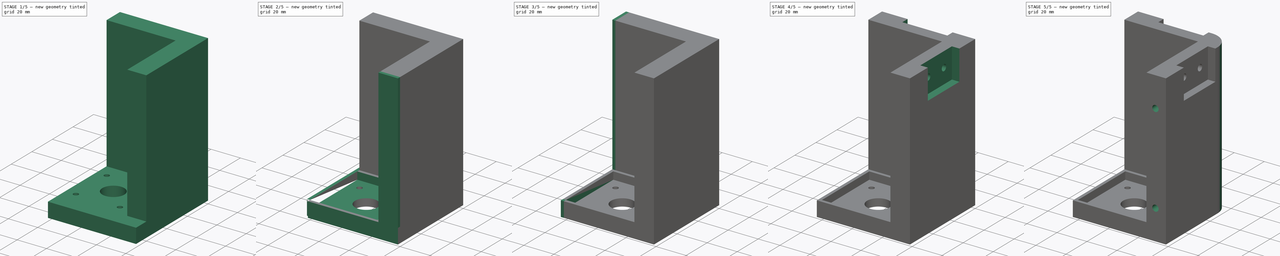
[diagram: build sequence overview — one tinted view per stage of 5, left to right]
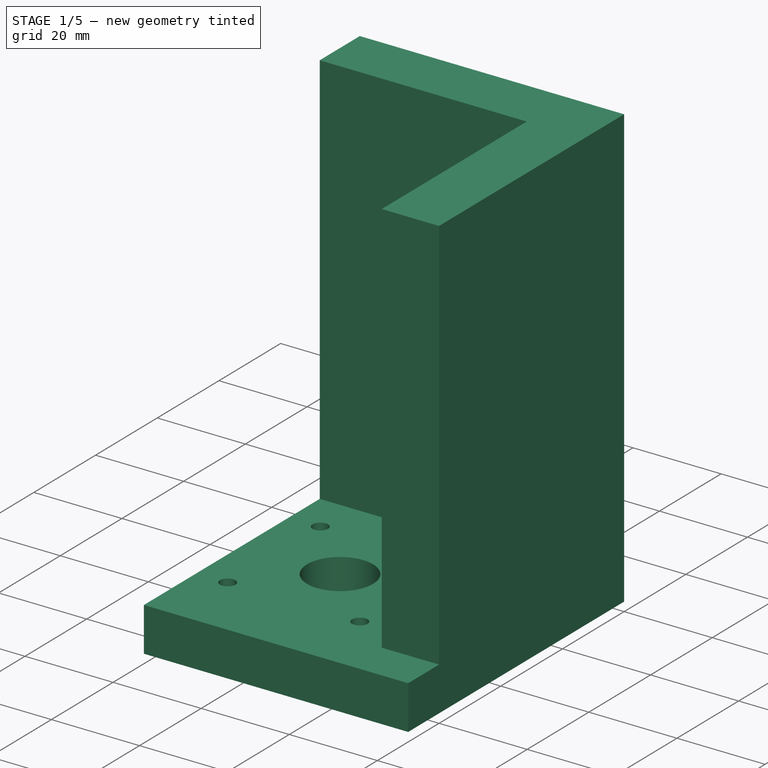
[diagram: stage 1 of 5 — iso view after this stage's code; geometry added in this stage tinted green]
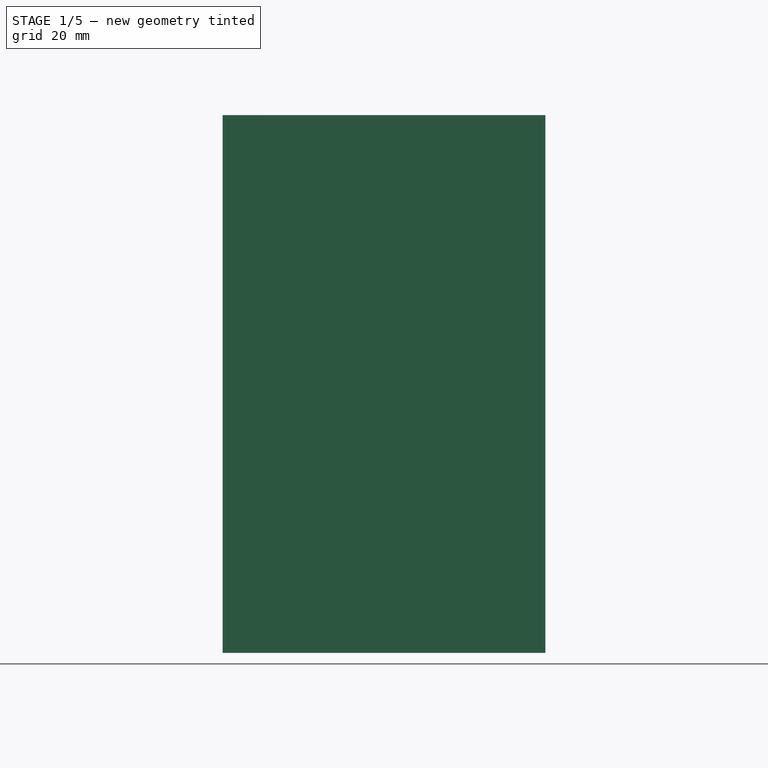
[diagram: stage 1 of 5 — front view after this stage's code; geometry added in this stage tinted green]
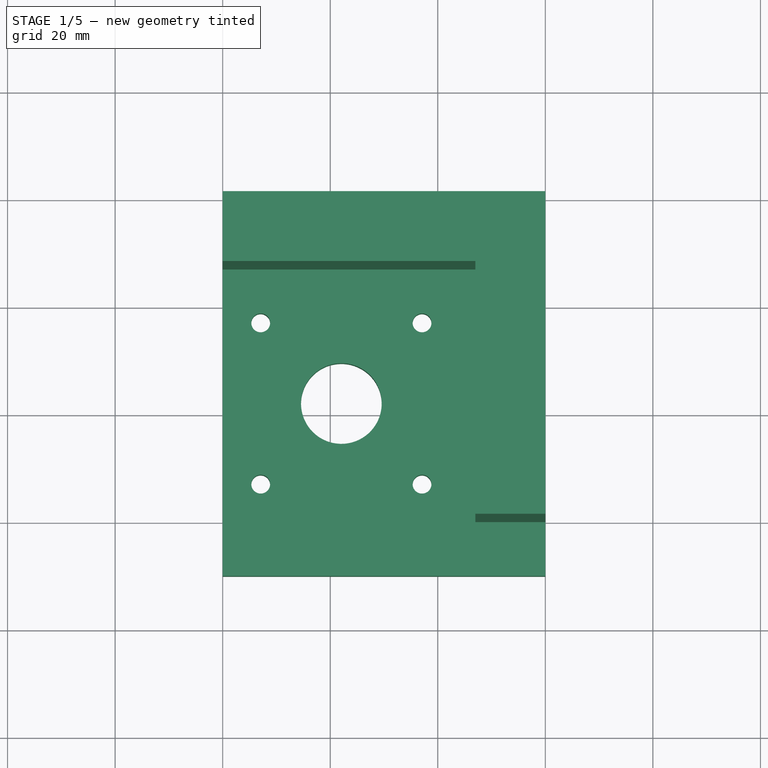
[diagram: stage 1 of 5 — top view after this stage's code; geometry added in this stage tinted green]
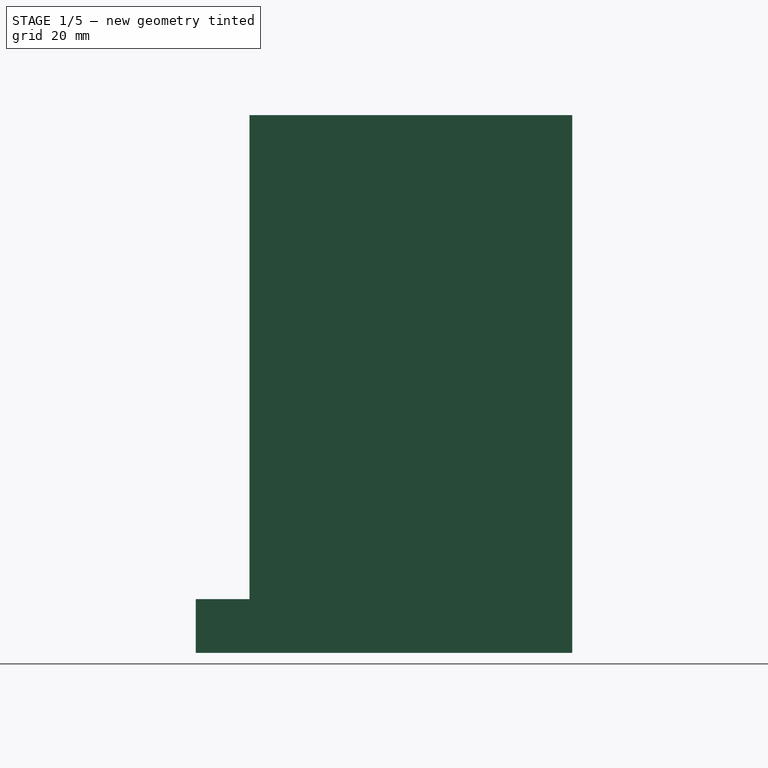
[diagram: stage 1 of 5 — right view after this stage's code; geometry added in this stage tinted green]
FCSTD DOCUMENT  (FreeCAD 0.21R33771 (Git))
Label: corner_adapterss
License: All rights reserved
LicenseURL: https://en.wikipedia.org/wiki/All_rights_reserved
objects: Sketcher::SketchObject×17, PartDesign::Pocket×12, PartDesign::Pad×9, PartDesign::Fillet×1, PartDesign::Body×1
note: 62 computed .brp shape members not serialized (recipe doc carries the construction recipe); baked Part::Feature solids carry a one-line shape summary decoded from their .brp

FEATURE [Sketcher::SketchObject] Sketch
  FullyConstrained = true
  MapMode = 5
  Support = -> [XY_Plane]
  sketch-geometry (4):
    g0: LineSegment StartX=0 StartY=0 StartZ=0 EndX=60 EndY=0 EndZ=0
    g1: LineSegment StartX=60 StartY=0 StartZ=0 EndX=60 EndY=60 EndZ=0
    g2: LineSegment StartX=60 StartY=60 StartZ=0 EndX=0 EndY=60 EndZ=0
    g3: LineSegment StartX=0 StartY=60 StartZ=0 EndX=0 EndY=0 EndZ=0
  constraints (11):
    c: Coincident(g0,g1)
    c: Coincident(g1,g2)
    c: Coincident(g2,g3)
    c: Coincident(g3,g0)
    c: Horizontal(g0)
    c: Horizontal(g2)
    c: Vertical(g1)
    c: Vertical(g3)
    c: Coincident(g0,g-1)
    c: Equal(g0,g3)
    c: DistanceX(g0,g0) = 60
FEATURE [PartDesign::Pad] Pad
  Direction = (0,0,1)
  Length = 100
  Length2 = 10
  Profile = -> Sketch
  ReferenceAxis = -> Sketch [N_Axis]
  Type = 0
FEATURE [Sketcher::SketchObject] Sketch001
  FullyConstrained = true
  MapMode = 5
  Placement = pos=(0,0,100) rot=(0,0,1;0rad)
  Support = -> [Pad]
  sketch-geometry (4):
    g0: LineSegment StartX=0 StartY=0 StartZ=0 EndX=47 EndY=0 EndZ=0
    g1: LineSegment StartX=47 StartY=0 StartZ=0 EndX=47 EndY=47 EndZ=0
    g2: LineSegment StartX=47 StartY=47 StartZ=0 EndX=0 EndY=47 EndZ=0
    g3: LineSegment StartX=0 StartY=47 StartZ=0 EndX=0 EndY=0 EndZ=0
  constraints (11):
    c: Coincident(g0,g1)
    c: Coincident(g1,g2)
    c: Coincident(g2,g3)
    c: Coincident(g3,g0)
    c: Horizontal(g0)
    c: Horizontal(g2)
    c: Vertical(g1)
    c: Vertical(g3)
    c: Coincident(g0,g-1)
    c: Equal(g0,g3)
    c: DistanceX(g0,g0) = 47
FEATURE [PartDesign::Pocket] Pocket
  BaseFeature = -> Pad
  Direction = (0,0,-1)
  Length = 90
  Length2 = 5
  Profile = -> Sketch001
  ReferenceAxis = -> Sketch001 [N_Axis]
  Type = 0
FEATURE [Sketcher::SketchObject] Sketch002
  FullyConstrained = true
  MapMode = 5
  Placement = pos=(0,0,10) rot=(0,0,1;0rad)
  Support = -> [Pocket]
  sketch-geometry (14):
    g0: LineSegment StartX=7.07107 StartY=37.0711 StartZ=0 EndX=37.0711 EndY=37.0711 EndZ=0
    g1: LineSegment StartX=37.0711 StartY=37.0711 StartZ=0 EndX=37.0711 EndY=7.07107 EndZ=0
    g2: LineSegment StartX=37.0711 StartY=7.07107 StartZ=0 EndX=7.07107 EndY=7.07107 EndZ=0
    g3: LineSegment StartX=7.07107 StartY=7.07107 StartZ=0 EndX=7.07107 EndY=37.0711 EndZ=0
    g4: LineSegment StartX=0 StartY=0 StartZ=0 EndX=37.0711 EndY=37.0711 EndZ=0
    g5: GeomPoint X=0 Y=0 Z=0
    g6: GeomPoint X=0 Y=0 Z=0
    g7: GeomPoint X=22.0711 Y=22.0711 Z=0
    g8: LineSegment StartX=7.07107 StartY=37.0711 StartZ=0 EndX=37.0711 EndY=7.07107 EndZ=0
    g9: Circle CenterX=22.0711 CenterY=22.0711 CenterZ=0 NormalX=0 NormalY=0 NormalZ=1 AngleXU=0 Radius=7.5
    g10: Circle CenterX=37.0711 CenterY=7.07107 CenterZ=0 NormalX=0 NormalY=0 NormalZ=1 AngleXU=0 Radius=1.75
    g11: Circle CenterX=7.07107 CenterY=7.07107 CenterZ=0 NormalX=0 NormalY=0 NormalZ=1 AngleXU=0 Radius=1.75
    g12: Circle CenterX=37.0711 CenterY=37.0711 CenterZ=0 NormalX=0 NormalY=0 NormalZ=1 AngleXU=0 Radius=1.75
    g13: Circle CenterX=7.07107 CenterY=37.0711 CenterZ=0 NormalX=0 NormalY=0 NormalZ=1 AngleXU=0 Radius=1.75
  constraints (30):
    c: Coincident(g0,g1)
    c: Coincident(g1,g2)
    c: Coincident(g2,g3)
    c: Coincident(g3,g0)
    c: Horizontal(g0)
    c: Horizontal(g2)
    c: Vertical(g1)
    c: Vertical(g3)
    c: Equal(g2,g3)
    c: DistanceX(g2,g2) = 30
    c: Coincident(g5,g4)
    c: Coincident(g6,g-1)
    c: Coincident(g6,g4)
    c: Coincident(g4,g0)
    c: PointOnObject(g2,g4)
    c: Distance(g2,g4) = 10
    c: PointOnObject(g7,g4)
    c: Coincident(g8,g1)
    c: Coincident(g8,g0)
    c: PointOnObject(g7,g8)
    c: Coincident(g9,g7)
    c: Diameter(g9) = 15
    c: Coincident(g13,g0)
    c: Coincident(g12,g0)
    c: Coincident(g10,g1)
    c: Coincident(g11,g2)
    c: Equal(g11,g10)
    c: Equal(g11,g12)
    c: Equal(g11,g13)
    c: Diameter(g11) = 3.5
FEATURE [PartDesign::Pocket] Pocket001
  BaseFeature = -> Pocket
  Direction = (0,0,-1)
  Length = 5
  Length2 = 5
  Profile = -> Sketch002
  ReferenceAxis = -> Sketch002 [N_Axis]
  Type = 1
FEATURE [Sketcher::SketchObject] Sketch003
  FullyConstrained = true
  MapMode = 5
  Placement = pos=(0,0,10) rot=(0,0,1;0rad)
  Support = -> [Pocket001]
FEATURE [Sketcher::SketchObject] Sketch004
  FullyConstrained = true
  MapMode = 5
  Placement = pos=(0,0,0) rot=(1,0,0;1.5708rad)
  Support = -> [Pocket001]
  sketch-geometry (4):
    g0: LineSegment StartX=0 StartY=0 StartZ=0 EndX=60 EndY=0 EndZ=0
    g1: LineSegment StartX=60 StartY=0 StartZ=0 EndX=60 EndY=10 EndZ=0
    g2: LineSegment StartX=60 StartY=10 StartZ=0 EndX=0 EndY=10 EndZ=0
    g3: LineSegment StartX=0 StartY=10 StartZ=0 EndX=0 EndY=0 EndZ=0
  constraints (11):
    c: Coincident(g0,g1)
    c: Coincident(g1,g2)
    c: Coincident(g2,g3)
    c: Coincident(g3,g0)
    c: Horizontal(g0)
    c: Horizontal(g2)
    c: Vertical(g1)
    c: Vertical(g3)
    c: Coincident(g0,g-1)
    c: DistanceY(g3,g3) = 10
    c: DistanceX(g0,g0) = 60
FEATURE [PartDesign::Pad] Pad001
  BaseFeature = -> Pocket001
  Direction = (0,-1,2e-16)
  Length = 10
  Length2 = 10
  Profile = -> Sketch004
  ReferenceAxis = -> Sketch004 [N_Axis]
  Type = 0
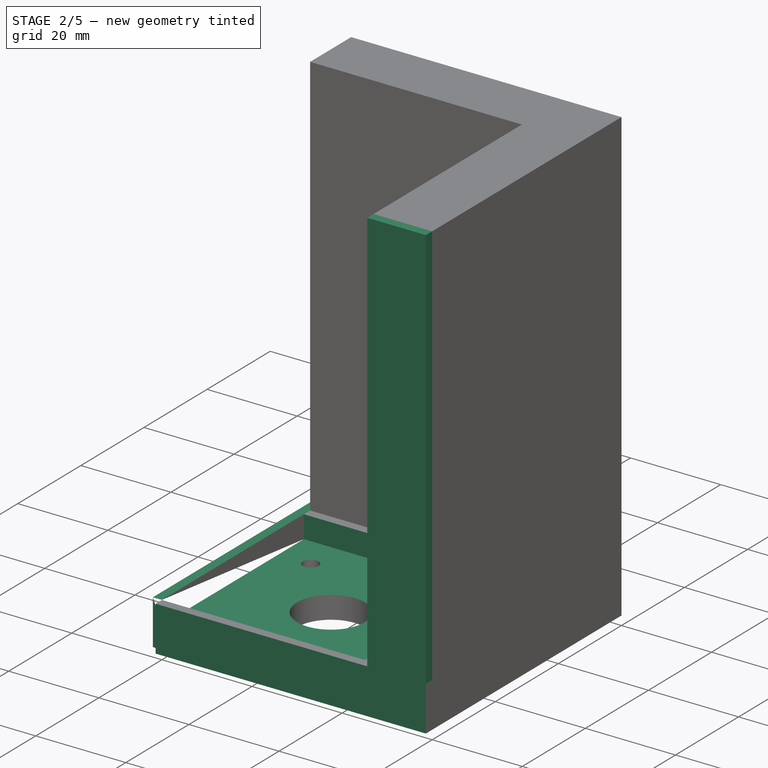
[diagram: stage 2 of 5 — iso view after this stage's code; geometry added in this stage tinted green]
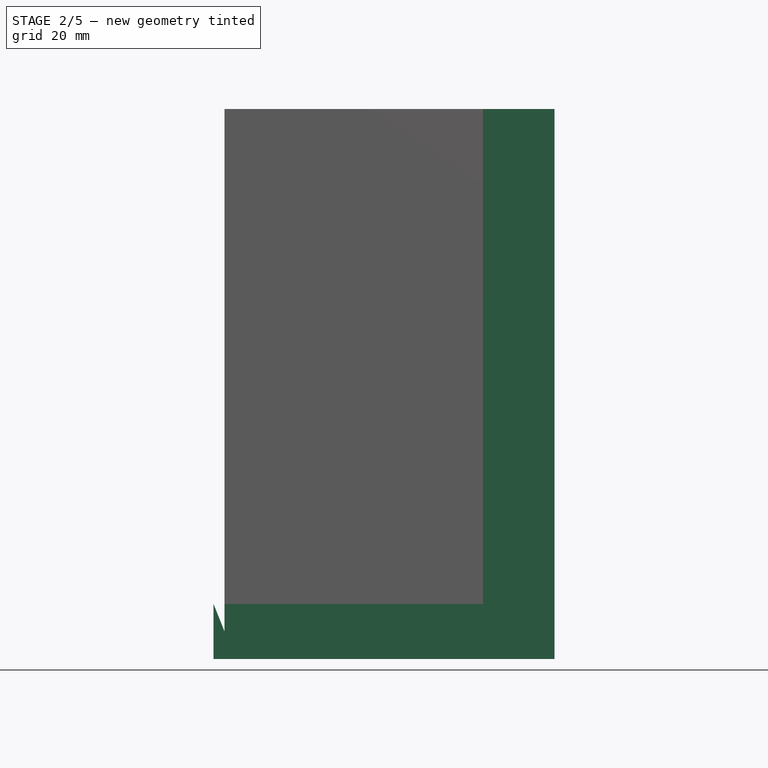
[diagram: stage 2 of 5 — front view after this stage's code; geometry added in this stage tinted green]
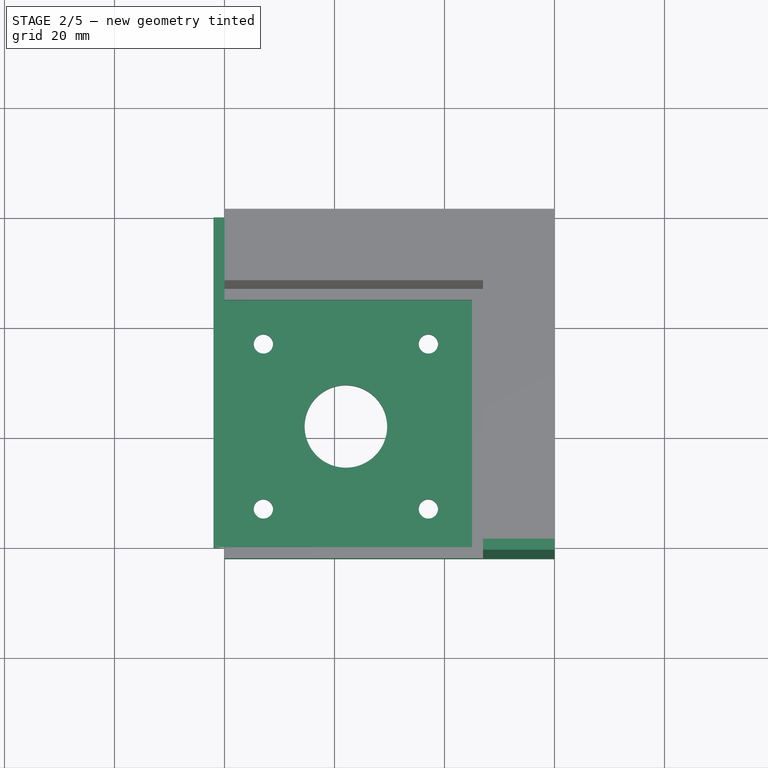
[diagram: stage 2 of 5 — top view after this stage's code; geometry added in this stage tinted green]
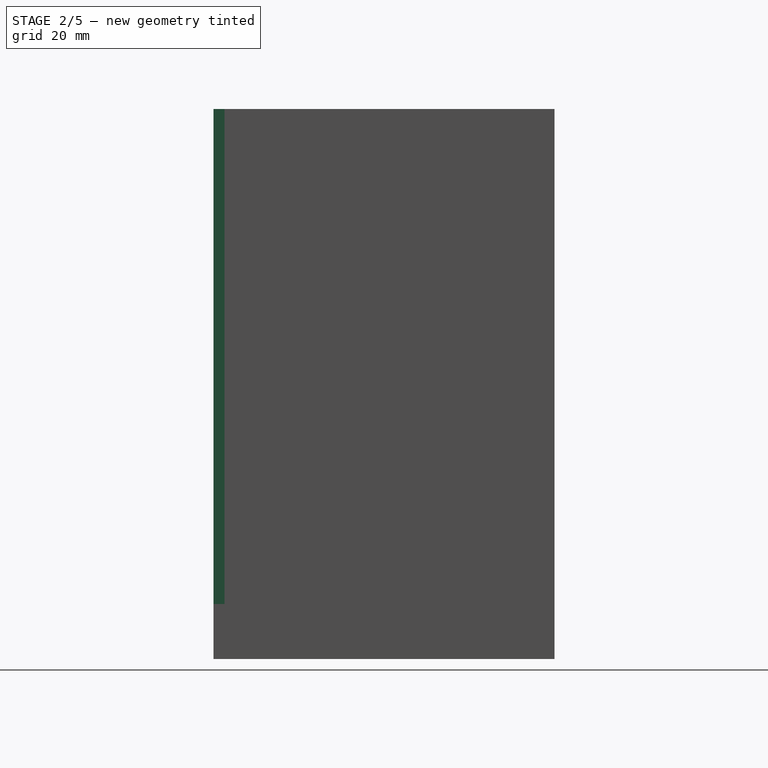
[diagram: stage 2 of 5 — right view after this stage's code; geometry added in this stage tinted green]
FEATURE [Sketcher::SketchObject] Sketch005
  FullyConstrained = true
  MapMode = 5
  Placement = pos=(0,0,0) rot=(0.57735,-0.57735,-0.57735;2.0944rad)
  Support = -> [Pad001]
  sketch-geometry (4):
    g0: LineSegment StartX=0 StartY=0 StartZ=0 EndX=-60 EndY=0 EndZ=0
    g1: LineSegment StartX=-60 StartY=0 StartZ=0 EndX=-60 EndY=10 EndZ=0
    g2: LineSegment StartX=-60 StartY=10 StartZ=0 EndX=0 EndY=10 EndZ=0
    g3: LineSegment StartX=0 StartY=10 StartZ=0 EndX=0 EndY=0 EndZ=0
  constraints (11):
    c: Coincident(g0,g1)
    c: Coincident(g1,g2)
    c: Coincident(g2,g3)
    c: Coincident(g3,g0)
    c: Horizontal(g0)
    c: Horizontal(g2)
    c: Vertical(g1)
    c: Vertical(g3)
    c: Coincident(g0,g-1)
    c: DistanceX(g0,g0) = 60
    c: DistanceY(g3,g3) = 10
FEATURE [PartDesign::Pad] Pad002
  BaseFeature = -> Pad001
  Direction = (-1,0,0)
  Length = 10
  Length2 = 10
  Profile = -> Sketch005
  ReferenceAxis = -> Sketch005 [N_Axis]
  Type = 0
FEATURE [Sketcher::SketchObject] Sketch006
  FullyConstrained = true
  MapMode = 5
  Placement = pos=(0,0,10) rot=(0,0,1;0rad)
  Support = -> [Pad002]
  sketch-geometry (4):
    g0: LineSegment StartX=0 StartY=0 StartZ=0 EndX=45 EndY=0 EndZ=0
    g1: LineSegment StartX=45 StartY=0 StartZ=0 EndX=45 EndY=45 EndZ=0
    g2: LineSegment StartX=45 StartY=45 StartZ=0 EndX=0 EndY=45 EndZ=0
    g3: LineSegment StartX=0 StartY=45 StartZ=0 EndX=0 EndY=0 EndZ=0
  constraints (11):
    c: Coincident(g0,g1)
    c: Coincident(g1,g2)
    c: Coincident(g2,g3)
    c: Coincident(g3,g0)
    c: Horizontal(g0)
    c: Horizontal(g2)
    c: Vertical(g1)
    c: Vertical(g3)
    c: Coincident(g0,g-1)
    c: Equal(g0,g3)
    c: DistanceX(g0,g0) = 45
FEATURE [PartDesign::Pocket] Pocket002
  BaseFeature = -> Pad002
  Direction = (0,0,-1)
  Length = 5
  Length2 = 5
  Profile = -> Sketch006
  ReferenceAxis = -> Sketch006 [N_Axis]
  Type = 0
FEATURE [PartDesign::Pocket] Pocket003
  BaseFeature = -> Pocket002
  Direction = (0,1,-2e-16)
  Length = 8
  Length2 = 5
  Profile = -> Pocket002 [Face14]
  Type = 0
FEATURE [PartDesign::Pocket] Pocket004
  BaseFeature = -> Pocket003
  Direction = (1,0,0)
  Length = 8
  Length2 = 5
  Profile = -> Pocket003 [Face28]
  Type = 0
FEATURE [PartDesign::Pad] Pad003
  BaseFeature = -> Pocket004
  Direction = (0,-1,0)
  Length = 2
  Length2 = 10
  Profile = -> Pocket004 [Face1]
  Type = 0
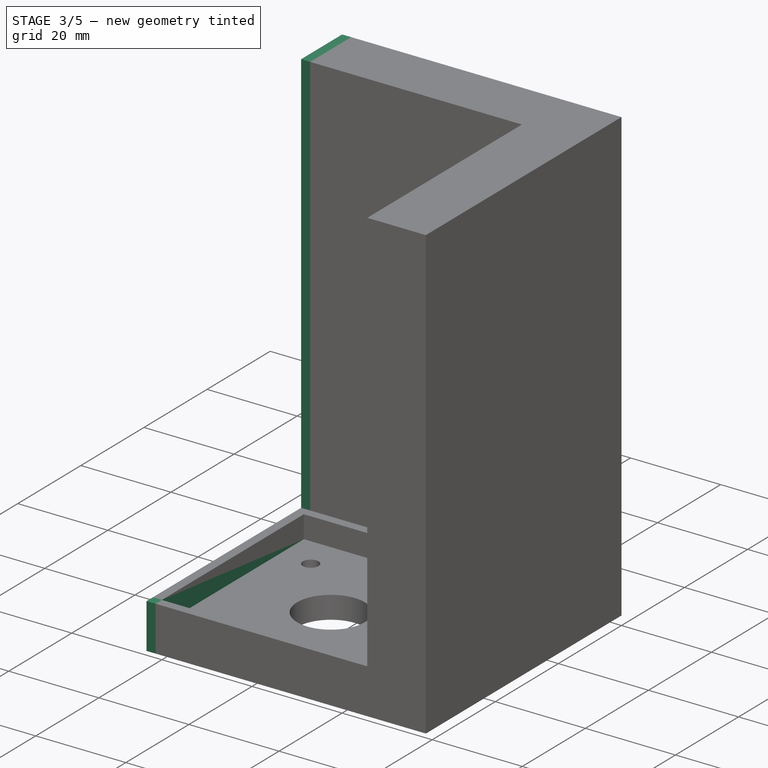
[diagram: stage 3 of 5 — iso view after this stage's code; geometry added in this stage tinted green]
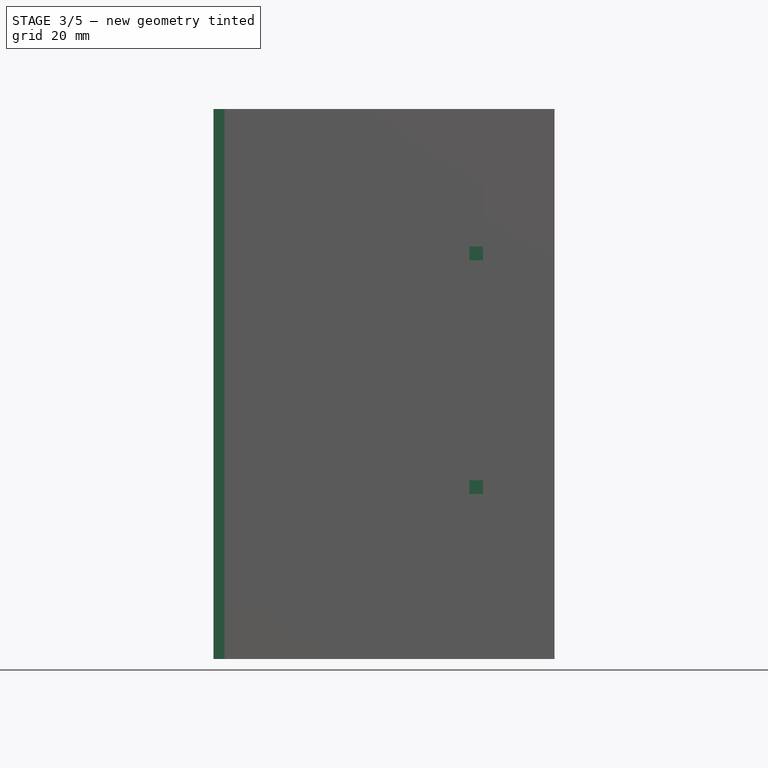
[diagram: stage 3 of 5 — front view after this stage's code; geometry added in this stage tinted green]
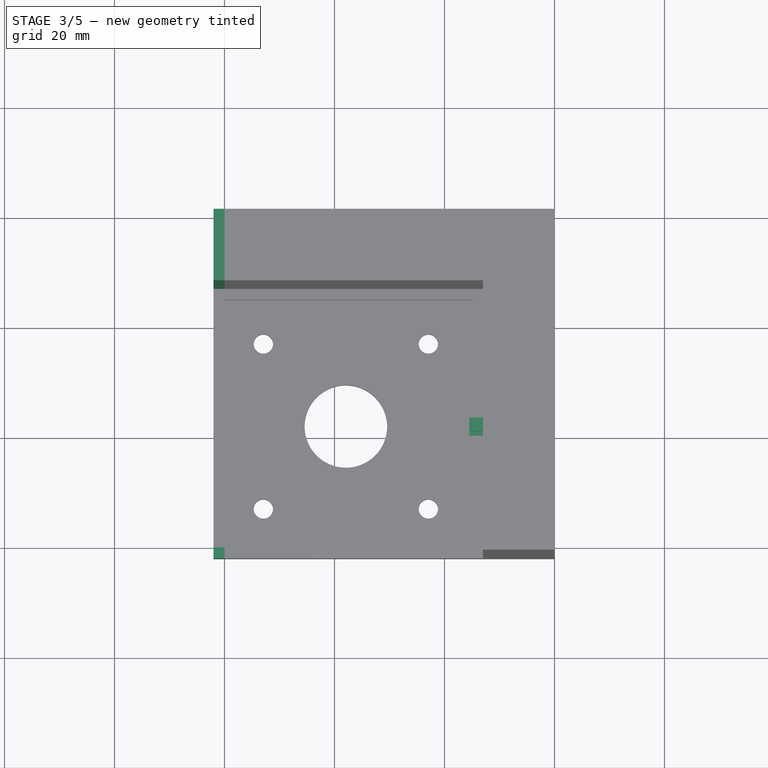
[diagram: stage 3 of 5 — top view after this stage's code; geometry added in this stage tinted green]
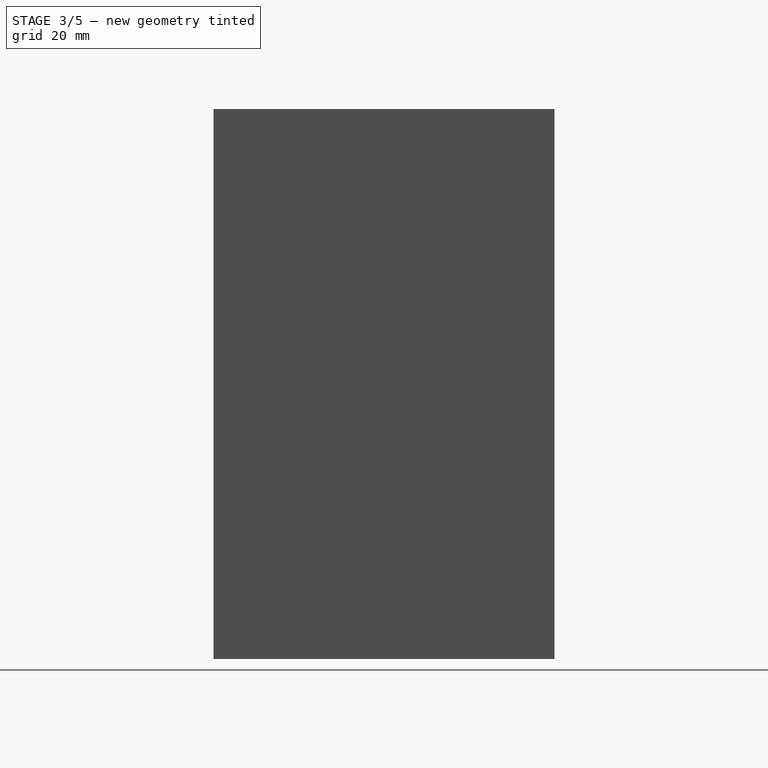
[diagram: stage 3 of 5 — right view after this stage's code; geometry added in this stage tinted green]
FEATURE [PartDesign::Pad] Pad004
  BaseFeature = -> Pad003
  Direction = (-1,0,0)
  Length = 2
  Length2 = 10
  Profile = -> Pad003 [Face12]
  Type = 0
FEATURE [PartDesign::Pad] Pad005
  BaseFeature = -> Pad004
  Direction = (0,-1,0)
  Length = 2
  Length2 = 10
  Profile = -> Pad004 [Face27]
  Type = 0
FEATURE [Sketcher::SketchObject] Sketch007
  FullyConstrained = true
  MapMode = 5
  Placement = pos=(47,0,0) rot=(0.57735,-0.57735,-0.57735;2.0944rad)
  Support = -> [Pad005]
  sketch-geometry (12):
    g0: LineSegment StartX=-22.5 StartY=30 StartZ=0 EndX=-20 EndY=30 EndZ=0
    g1: LineSegment StartX=-20 StartY=30 StartZ=0 EndX=-20 EndY=32.5 EndZ=0
    g2: LineSegment StartX=-20 StartY=32.5 StartZ=0 EndX=-22.5 EndY=32.5 EndZ=0
    g3: LineSegment StartX=-22.5 StartY=32.5 StartZ=0 EndX=-22.5 EndY=30 EndZ=0
    g4: LineSegment StartX=-22.5 StartY=75 StartZ=0 EndX=-20 EndY=75 EndZ=0
    g5: LineSegment StartX=-20 StartY=75 StartZ=0 EndX=-20 EndY=72.5 EndZ=0
    g6: LineSegment StartX=-20 StartY=72.5 StartZ=0 EndX=-22.5 EndY=72.5 EndZ=0
    g7: LineSegment StartX=-22.5 StartY=72.5 StartZ=0 EndX=-22.5 EndY=75 EndZ=0
    g8: LineSegment StartX=-22.5 StartY=75 StartZ=0 EndX=-20 EndY=75 EndZ=0
    g9: LineSegment StartX=-20 StartY=75 StartZ=0 EndX=-20 EndY=30 EndZ=0
    g10: LineSegment StartX=-20 StartY=30 StartZ=0 EndX=-22.5 EndY=30 EndZ=0
    g11: LineSegment StartX=-22.5 StartY=30 StartZ=0 EndX=-22.5 EndY=75 EndZ=0
  constraints (32):
    c: Coincident(g0,g1)
    c: Coincident(g1,g2)
    c: Coincident(g2,g3)
    c: Coincident(g3,g0)
    c: Horizontal(g0)
    c: Horizontal(g2)
    c: Vertical(g1)
    c: Vertical(g3)
    c: Coincident(g4,g5)
    c: Coincident(g5,g6)
    c: Coincident(g6,g7)
    c: Coincident(g7,g4)
    c: Horizontal(g4)
    c: Horizontal(g6)
    c: Vertical(g5)
    c: Vertical(g7)
    c: Coincident(g8,g9)
    c: Coincident(g9,g10)
    c: Coincident(g10,g11)
    c: Coincident(g11,g8)
    c: Vertical(g9)
    c: Vertical(g11)
    c: Coincident(g8,g4)
    c: Coincident(g9,g0)
    c: Coincident(g0,g10)
    c: Coincident(g4,g8)
    c: Equal(g1,g5)
    c: Equal(g4,g5)
    c: DistanceX(g0,g-1) = 20
    c: DistanceX(g0,g0) = 2.5
    c: DistanceY(g9,g9) = 45
    c: DistanceY(g-1,g0) = 30
FEATURE [PartDesign::Pad] Pad006
  BaseFeature = -> Pad005
  Direction = (-1,0,0)
  Length = 1.5
  Length2 = 10
  Profile = -> Sketch007
  ReferenceAxis = -> Sketch007 [N_Axis]
  Type = 0
FEATURE [PartDesign::Pad] Pad007
  BaseFeature = -> Pad006
  Direction = (-1,0,0)
  Length = 1
  Length2 = 10
  Profile = -> Pad006 [Face46,Face47]
  Type = 0
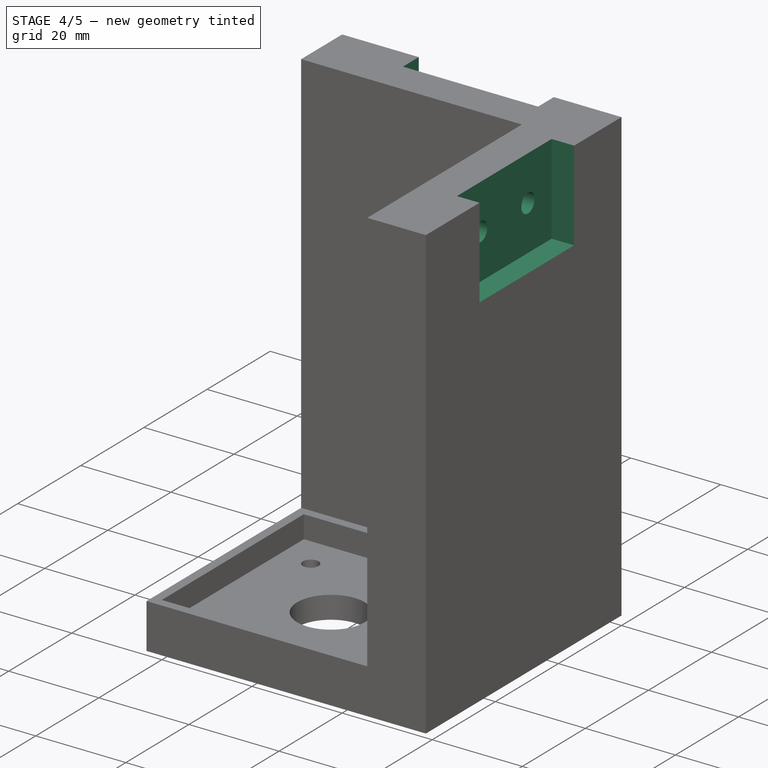
[diagram: stage 4 of 5 — iso view after this stage's code; geometry added in this stage tinted green]
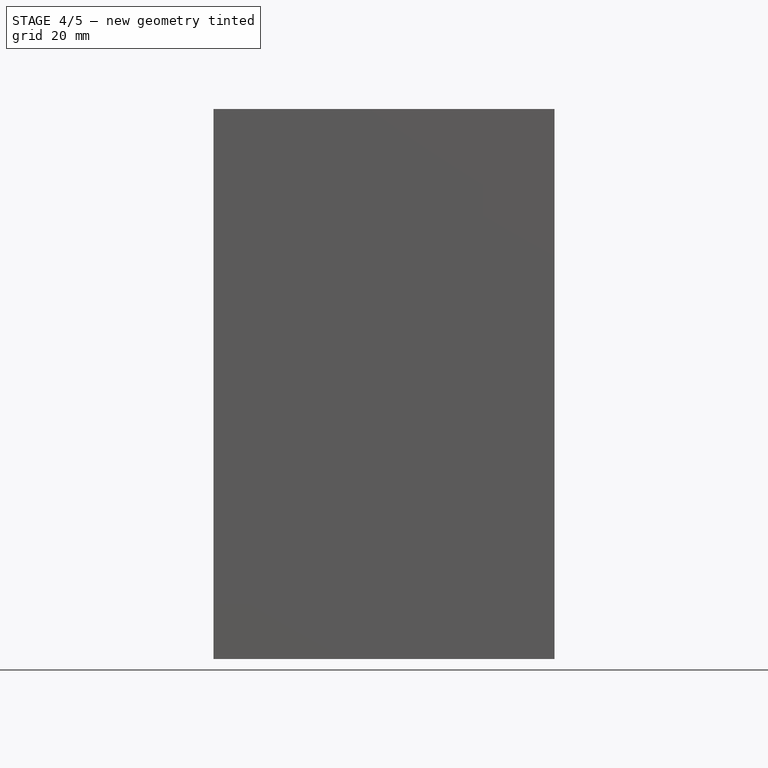
[diagram: stage 4 of 5 — front view after this stage's code; geometry added in this stage tinted green]
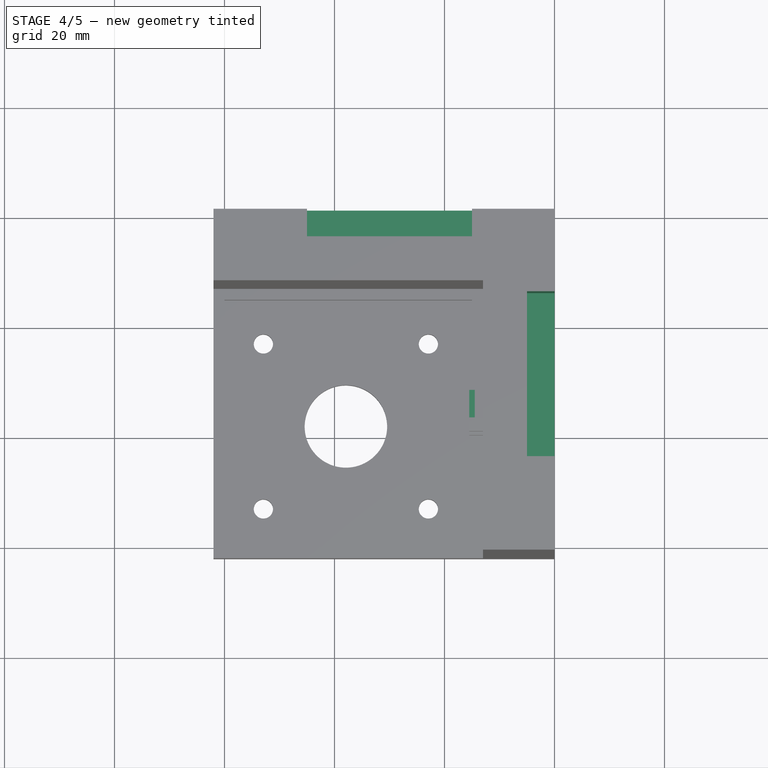
[diagram: stage 4 of 5 — top view after this stage's code; geometry added in this stage tinted green]
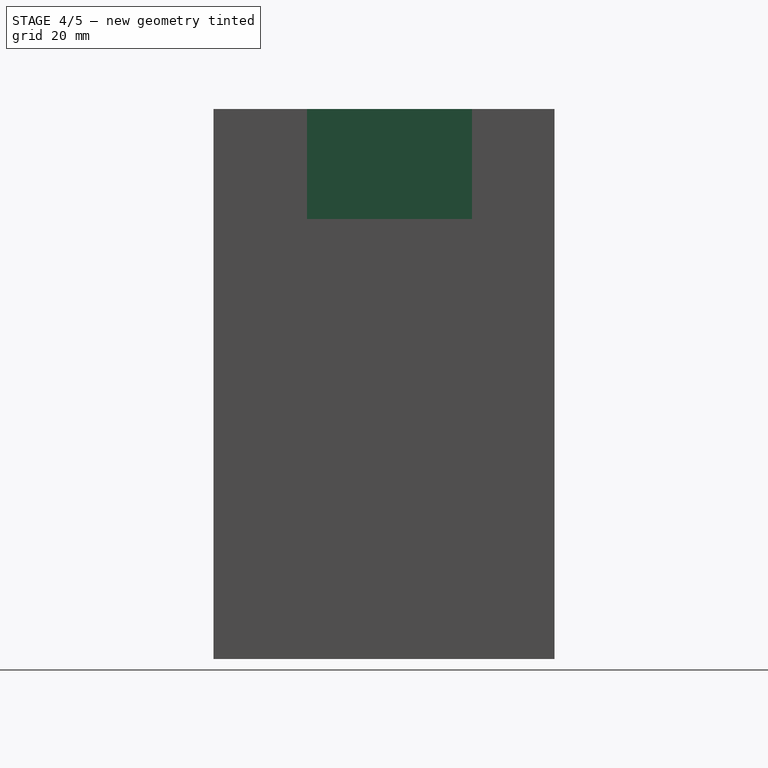
[diagram: stage 4 of 5 — right view after this stage's code; geometry added in this stage tinted green]
FEATURE [PartDesign::Pad] Pad008
  BaseFeature = -> Pad007
  Direction = (0,1,0)
  Length = 5
  Length2 = 10
  Profile = -> Pad007 [Face46,Face53]
  Type = 0
FEATURE [Sketcher::SketchObject] Sketch008
  FullyConstrained = true
  MapMode = 5
  Placement = pos=(0,60,0) rot=(0,0.707107,0.707107;3.14159rad)
  Support = -> [Pad008]
  sketch-geometry (4):
    g0: LineSegment StartX=-15 StartY=100 StartZ=0 EndX=-45 EndY=100 EndZ=0
    g1: LineSegment StartX=-45 StartY=100 StartZ=0 EndX=-45 EndY=80 EndZ=0
    g2: LineSegment StartX=-45 StartY=80 StartZ=0 EndX=-15 EndY=80 EndZ=0
    g3: LineSegment StartX=-15 StartY=80 StartZ=0 EndX=-15 EndY=100 EndZ=0
  constraints (12):
    c: Coincident(g1,g2)
    c: Coincident(g2,g3)
    c: Coincident(g3,g0)
    c: Horizontal(g0)
    c: Horizontal(g2)
    c: Vertical(g1)
    c: Vertical(g3)
    c: DistanceY(g-1,g0) = 100
    c: DistanceX(g0,g0) = 30
    c: Coincident(g1,g0)
    c: DistanceX(g0,g-1) = 15
    c: DistanceY(g3,g3) = 20
FEATURE [PartDesign::Pocket] Pocket005
  BaseFeature = -> Pad008
  Direction = (0,-1,2e-16)
  Length = 5
  Length2 = 5
  Profile = -> Sketch008
  ReferenceAxis = -> Sketch008 [N_Axis]
  Type = 0
FEATURE [Sketcher::SketchObject] Sketch009
  FullyConstrained = true
  MapMode = 5
  Placement = pos=(60,0,0) rot=(0.57735,0.57735,0.57735;2.0944rad)
  Support = -> [Pocket005]
  sketch-geometry (4):
    g0: LineSegment StartX=15 StartY=80 StartZ=0 EndX=45 EndY=80 EndZ=0
    g1: LineSegment StartX=45 StartY=80 StartZ=0 EndX=45 EndY=100 EndZ=0
    g2: LineSegment StartX=45 StartY=100 StartZ=0 EndX=15 EndY=100 EndZ=0
    g3: LineSegment StartX=15 StartY=100 StartZ=0 EndX=15 EndY=80 EndZ=0
  constraints (12):
    c: Coincident(g0,g1)
    c: Coincident(g1,g2)
    c: Coincident(g2,g3)
    c: Coincident(g3,g0)
    c: Horizontal(g0)
    c: Horizontal(g2)
    c: Vertical(g1)
    c: Vertical(g3)
    c: DistanceX(g2,g2) = 30
    c: DistanceX(g-1,g2) = 15
    c: DistanceY(g-1,g2) = 100
    c: DistanceY(g1,g1) = 20
FEATURE [PartDesign::Pocket] Pocket006
  BaseFeature = -> Pocket005
  Direction = (-1,0,0)
  Length = 5
  Length2 = 5
  Profile = -> Sketch009
  ReferenceAxis = -> Sketch009 [N_Axis]
  Type = 0
FEATURE [Sketcher::SketchObject] Sketch010
  FullyConstrained = true
  MapMode = 5
  Placement = pos=(55,0,0) rot=(0.57735,0.57735,0.57735;2.0944rad)
  Support = -> [Pocket006]
  sketch-geometry (3):
    g0: Circle CenterX=22.5 CenterY=90 CenterZ=0 NormalX=0 NormalY=0 NormalZ=1 AngleXU=0 Radius=2.1
    g1: Circle CenterX=37.5 CenterY=90 CenterZ=0 NormalX=0 NormalY=0 NormalZ=1 AngleXU=0 Radius=2.1
    g2: LineSegment StartX=22.5 StartY=90 StartZ=0 EndX=37.5 EndY=90 EndZ=0
  constraints (8):
    c: Horizontal(g2)
    c: Coincident(g2,g0)
    c: Coincident(g1,g2)
    c: DistanceY(g-1,g0) = 90
    c: DistanceX(g2,g2) = 15
    c: DistanceX(g-1,g0) = 22.5
    c: Equal(g1,g0)
    c: Diameter(g1) = 4.2
FEATURE [PartDesign::Pocket] Pocket007
  BaseFeature = -> Pocket006
  Direction = (-1,0,0)
  Length = 6
  Length2 = 5
  Profile = -> Sketch010
  ReferenceAxis = -> Sketch010 [N_Axis]
  Type = 0
FEATURE [Sketcher::SketchObject] Sketch011
  FullyConstrained = true
  MapMode = 5
  Placement = pos=(0,55,-1.98e-14) rot=(0,0.707107,0.707107;3.14159rad)
  Support = -> [Pocket007]
  sketch-geometry (3):
    g0: LineSegment StartX=-37.5 StartY=90 StartZ=0 EndX=-22.5 EndY=90 EndZ=0
    g1: Circle CenterX=-37.5 CenterY=90 CenterZ=0 NormalX=0 NormalY=0 NormalZ=1 AngleXU=0 Radius=2.1
    g2: Circle CenterX=-22.5 CenterY=90 CenterZ=0 NormalX=0 NormalY=0 NormalZ=1 AngleXU=0 Radius=2.1
  constraints (8):
    c: Horizontal(g0)
    c: DistanceX(g0,g0) = 15
    c: DistanceY(g-1,g0) = 90
    c: DistanceX(g0,g-1) = 22.5
    c: Coincident(g1,g0)
    c: Coincident(g2,g0)
    c: Equal(g2,g1)
    c: Diameter(g2) = 4.2
FEATURE [PartDesign::Pocket] Pocket008
  BaseFeature = -> Pocket007
  Direction = (0,-1,4e-16)
  Length = 6
  Length2 = 5
  Profile = -> Sketch011
  ReferenceAxis = -> Sketch011 [N_Axis]
  Type = 0
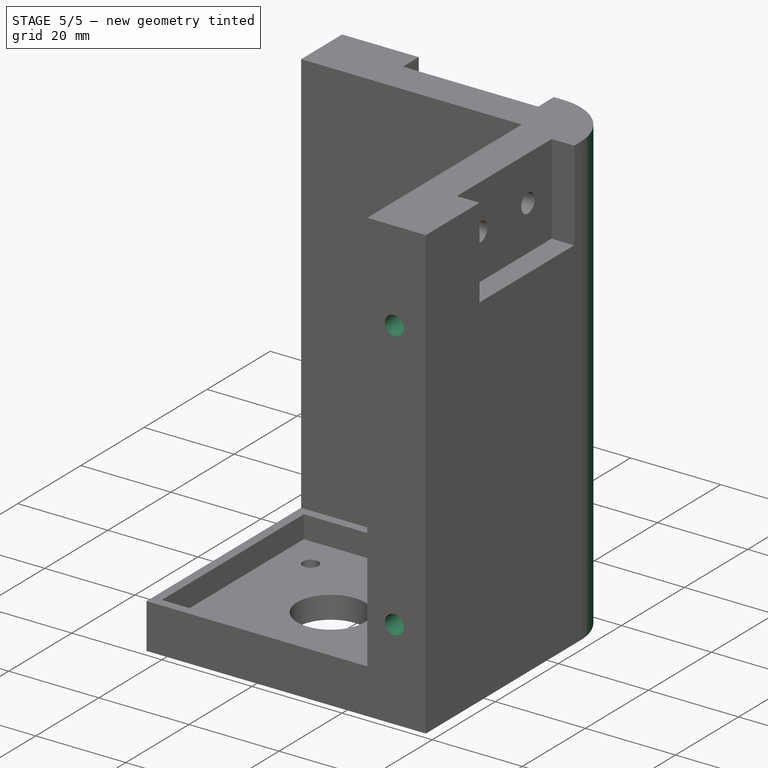
[diagram: stage 5 of 5 — iso view after this stage's code; geometry added in this stage tinted green]
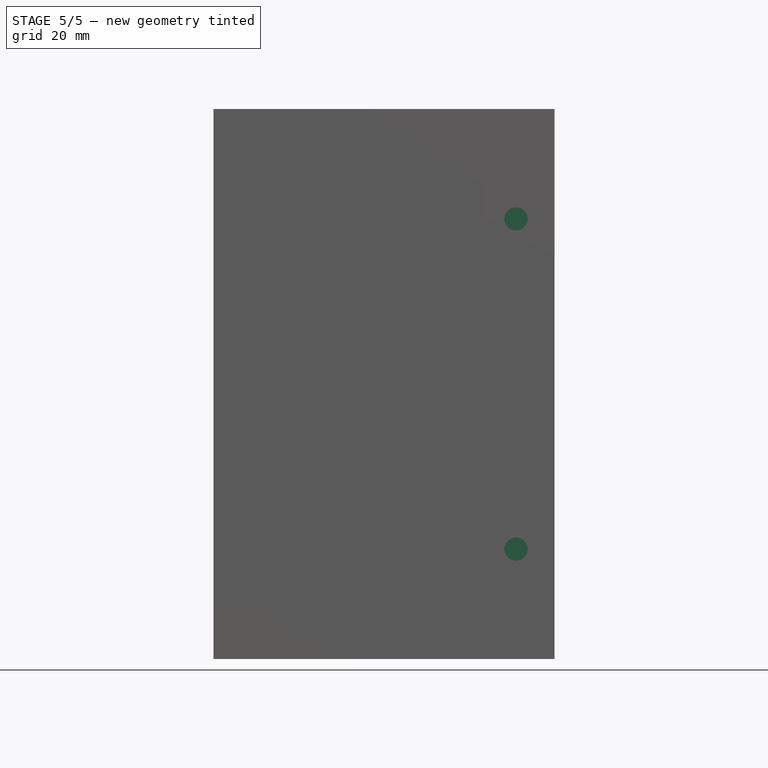
[diagram: stage 5 of 5 — front view after this stage's code; geometry added in this stage tinted green]
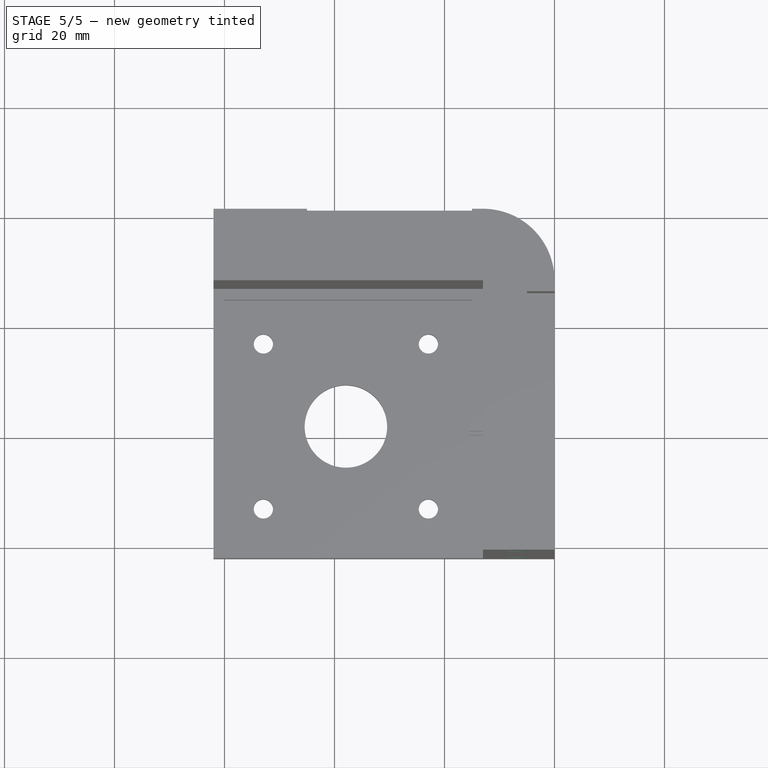
[diagram: stage 5 of 5 — top view after this stage's code; geometry added in this stage tinted green]
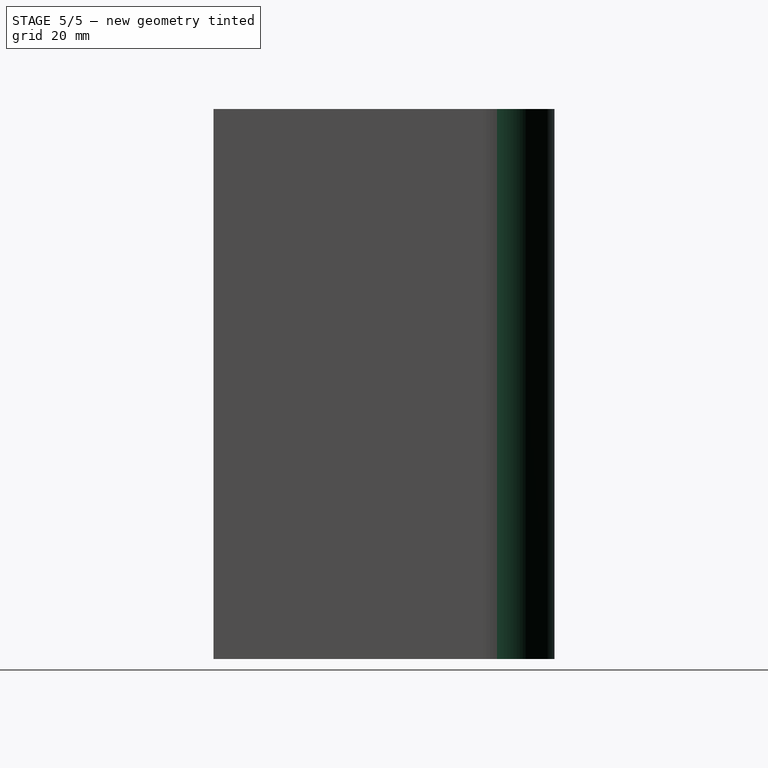
[diagram: stage 5 of 5 — right view after this stage's code; geometry added in this stage tinted green]
FEATURE [Sketcher::SketchObject] Sketch012
  FullyConstrained = true
  MapMode = 5
  Placement = pos=(0,-2,0) rot=(1,0,0;1.5708rad)
  Support = -> [Pocket008]
  sketch-geometry (3):
    g0: LineSegment StartX=53 StartY=80 StartZ=0 EndX=53 EndY=20 EndZ=0
    g1: Circle CenterX=53 CenterY=80 CenterZ=0 NormalX=0 NormalY=0 NormalZ=1 AngleXU=0 Radius=2.1
    g2: Circle CenterX=53 CenterY=20 CenterZ=0 NormalX=0 NormalY=0 NormalZ=1 AngleXU=0 Radius=2.1
  constraints (8):
    c: Vertical(g0)
    c: DistanceY(g0,g0) = 60
    c: DistanceY(g-1,g0) = 20
    c: DistanceX(g-1,g0) = 53
    c: Coincident(g1,g0)
    c: Coincident(g2,g0)
    c: Equal(g2,g1)
    c: Diameter(g2) = 4.2
FEATURE [PartDesign::Pocket] Pocket009
  BaseFeature = -> Pocket008
  Direction = (0,1,-2e-16)
  Length = 6
  Length2 = 5
  Profile = -> Sketch012
  ReferenceAxis = -> Sketch012 [N_Axis]
  Type = 0
FEATURE [Sketcher::SketchObject] Sketch013
  FullyConstrained = true
  MapMode = 5
  Placement = pos=(-2,0,0) rot=(0.57735,-0.57735,-0.57735;2.0944rad)
  Support = -> [Pocket009]
  sketch-geometry (3):
    g0: LineSegment StartX=-53 StartY=80 StartZ=0 EndX=-53 EndY=20 EndZ=0
    g1: Circle CenterX=-53 CenterY=80 CenterZ=0 NormalX=0 NormalY=0 NormalZ=1 AngleXU=0 Radius=2.1
    g2: Circle CenterX=-53 CenterY=20 CenterZ=0 NormalX=0 NormalY=0 NormalZ=1 AngleXU=0 Radius=2.1
  constraints (8):
    c: Vertical(g0)
    c: DistanceX(g0,g-1) = 53
    c: DistanceY(g0,g0) = 60
    c: DistanceY(g-1,g0) = 20
    c: Coincident(g1,g0)
    c: Coincident(g2,g0)
    c: Equal(g1,g2)
    c: Diameter(g1) = 4.2
FEATURE [PartDesign::Pocket] Pocket010
  BaseFeature = -> Pocket009
  Direction = (1,0,0)
  Length = 6
  Length2 = 5
  Profile = -> Sketch013
  ReferenceAxis = -> Sketch013 [N_Axis]
  Type = 0
FEATURE [PartDesign::Fillet] Fillet
  Base = -> Pocket010 [Edge2]
  BaseFeature = -> Pocket010
  Radius = 13
  SupportTransform = false
  UseAllEdges = false
FEATURE [Sketcher::SketchObject] Sketch014
  FullyConstrained = true
  MapMode = 5
  Placement = pos=(0,0,0) rot=(1,0,0;3.14159rad)
  Support = -> [Fillet]
FEATURE [Sketcher::SketchObject] Sketch015
  FullyConstrained = true
  MapMode = 5
  Placement = pos=(0,0,0) rot=(1,0,0;3.14159rad)
  Support = -> [Fillet]
  sketch-geometry (16):
    g0: LineSegment StartX=0 StartY=0 StartZ=0 EndX=55 EndY=0 EndZ=0
    g1: LineSegment StartX=55 StartY=0 StartZ=0 EndX=55 EndY=-55 EndZ=0
    g2: LineSegment StartX=55 StartY=-55 StartZ=0 EndX=0 EndY=-55 EndZ=0
    g3: LineSegment StartX=0 StartY=-55 StartZ=0 EndX=0 EndY=0 EndZ=0
    g4: LineSegment StartX=55 StartY=-55 StartZ=0 EndX=10 EndY=-55 EndZ=0
    g5: LineSegment StartX=10 StartY=-55 StartZ=0 EndX=10 EndY=-10 EndZ=0
    g6: LineSegment StartX=10 StartY=-10 StartZ=0 EndX=55 EndY=-10 EndZ=0
    g7: LineSegment StartX=55 StartY=-10 StartZ=0 EndX=55 EndY=-55 EndZ=0
    g8: LineSegment StartX=55 StartY=-55 StartZ=0 EndX=45 EndY=-55 EndZ=0
    g9: LineSegment StartX=45 StartY=-55 StartZ=0 EndX=45 EndY=-45 EndZ=0
    g10: LineSegment StartX=45 StartY=-45 StartZ=0 EndX=55 EndY=-45 EndZ=0
    g11: LineSegment StartX=55 StartY=-45 StartZ=0 EndX=55 EndY=-55 EndZ=0
    g12: Circle CenterX=10 CenterY=-55 CenterZ=0 NormalX=0 NormalY=0 NormalZ=1 AngleXU=0 Radius=2.1
    g13: Circle CenterX=45 CenterY=-55 CenterZ=0 NormalX=0 NormalY=0 NormalZ=1 AngleXU=0 Radius=2.1
    g14: Circle CenterX=55 CenterY=-45 CenterZ=0 NormalX=0 NormalY=0 NormalZ=1 AngleXU=0 Radius=2.1
    g15: Circle CenterX=55 CenterY=-10 CenterZ=0 NormalX=0 NormalY=0 NormalZ=1 AngleXU=0 Radius=2.1
  constraints (41):
    c: Coincident(g0,g1)
    c: Coincident(g1,g2)
    c: Coincident(g2,g3)
    c: Coincident(g3,g0)
    c: Horizontal(g0)
    c: Horizontal(g2)
    c: Vertical(g1)
    c: Vertical(g3)
    c: Coincident(g0,g-1)
    c: Equal(g1,g2)
    c: Coincident(g4,g5)
    c: Coincident(g5,g6)
    c: Coincident(g6,g7)
    c: Coincident(g7,g4)
    c: Horizontal(g4)
    c: Horizontal(g6)
    c: Vertical(g5)
    c: Vertical(g7)
    c: Coincident(g4,g1)
    c: Equal(g5,g6)
    c: Coincident(g8,g9)
    c: Coincident(g9,g10)
    c: Coincident(g10,g11)
    c: Coincident(g11,g8)
    c: Horizontal(g8)
    c: Horizontal(g10)
    c: Vertical(g9)
    c: Vertical(g11)
    c: Coincident(g8,g1)
    c: Equal(g10,g9)
    c: DistanceX(g2,g4) = 10
    c: DistanceX(g8,g1) = 10
    c: DistanceX(g2,g2) = 55
    c: Coincident(g12,g4)
    c: Coincident(g13,g8)
    c: Coincident(g14,g10)
    c: Coincident(g15,g6)
    c: Equal(g13,g14)
    c: Equal(g13,g15)
    c: Equal(g13,g12)
    c: Diameter(g13) = 4.2
FEATURE [PartDesign::Pocket] Pocket011
  BaseFeature = -> Fillet
  Direction = (0,0,1)
  Length = 6
  Length2 = 5
  Profile = -> Sketch015
  ReferenceAxis = -> Sketch015 [N_Axis]
  Type = 0
FEATURE [Sketcher::SketchObject] Sketch016
  FullyConstrained = true
  MapMode = 5
  Placement = pos=(-2,0,0) rot=(0.57735,-0.57735,-0.57735;2.0944rad)
  Support = -> [Pocket011]
  sketch-geometry (2):
    g0: Circle CenterX=-10 CenterY=5 CenterZ=0 NormalX=0 NormalY=0 NormalZ=1 AngleXU=0 Radius=2.1
    g1: Circle CenterX=-50 CenterY=5 CenterZ=0 NormalX=0 NormalY=0 NormalZ=1 AngleXU=0 Radius=2.1
  constraints (6):
    c: Diameter(g0) = 4.2
    c: DistanceY(g-1,g0) = 5
    c: DistanceX(g0,g-1) = 10
    c: DistanceY(g0,g1) = 0
    c: DistanceX(g1,g0) = 40
    c: Diameter(g1) = 4.2
FEATURE [PartDesign::Body] Body
  Group = -> [Sketch,Pad,Sketch001,Pocket,Sketch002,Pocket001,Sketch003,Sketch004,Pad001,Sketch005,Pad002,Sketch006,Pocket002,Pocket003,Pocket004,Pad003,Pad004,Pad005,Sketch007,Pad006,Pad007,Pad008,Sketch008,Pocket005,Sketch009,Pocket006,Sketch010,Pocket007,Sketch011,Pocket008,Sketch012,Pocket009,Sketch013,Pocket010,Fillet,Sketch014,Sketch015,Pocket011,Sketch016]
  Origin = -> Origin
  Tip = -> Pocket011
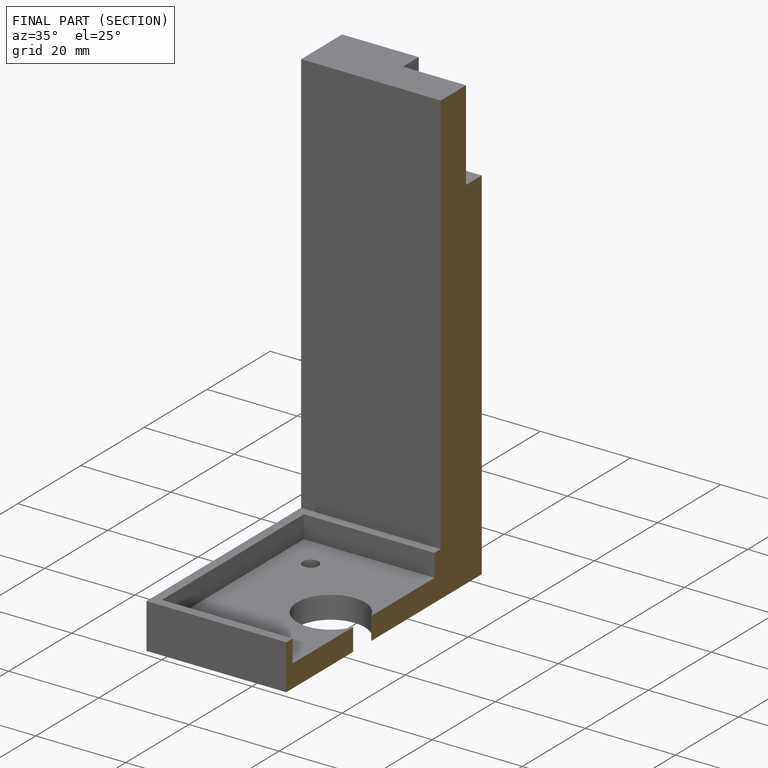
[diagram: finished part — half-section view (interior)]
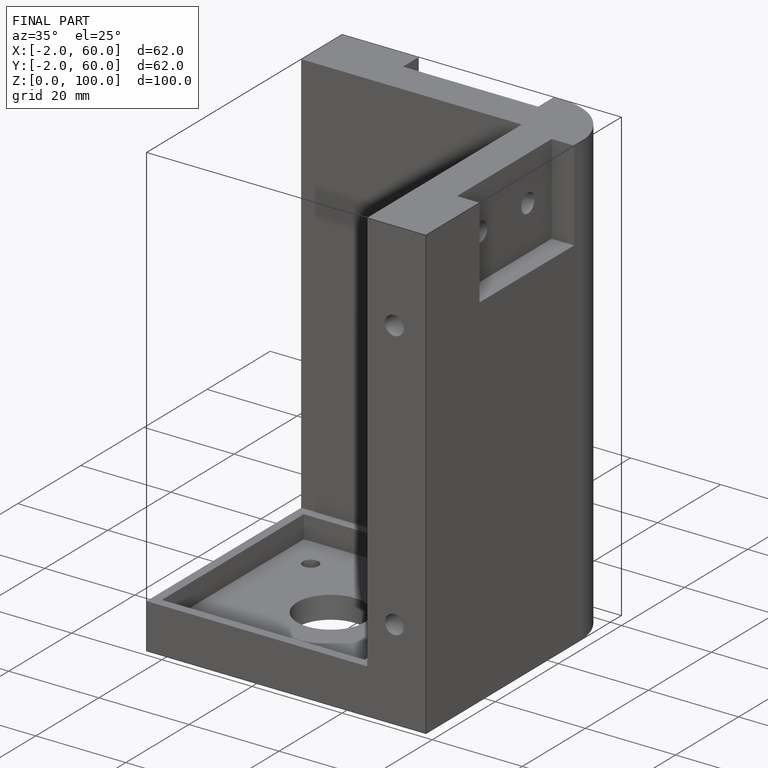
[diagram: finished part — iso view with bounding-box wireframe]
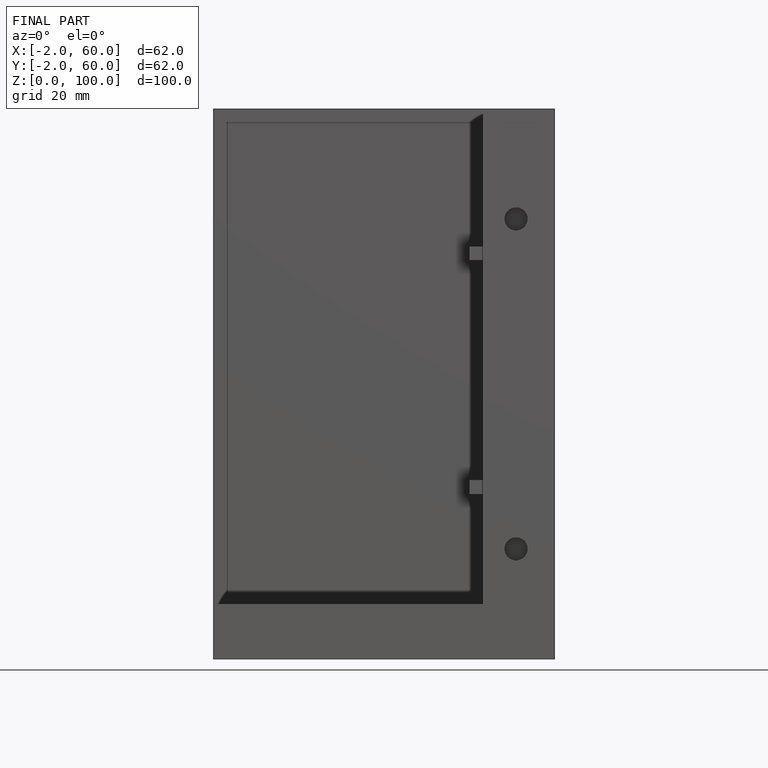
[diagram: finished part — front view with bounding-box wireframe]
